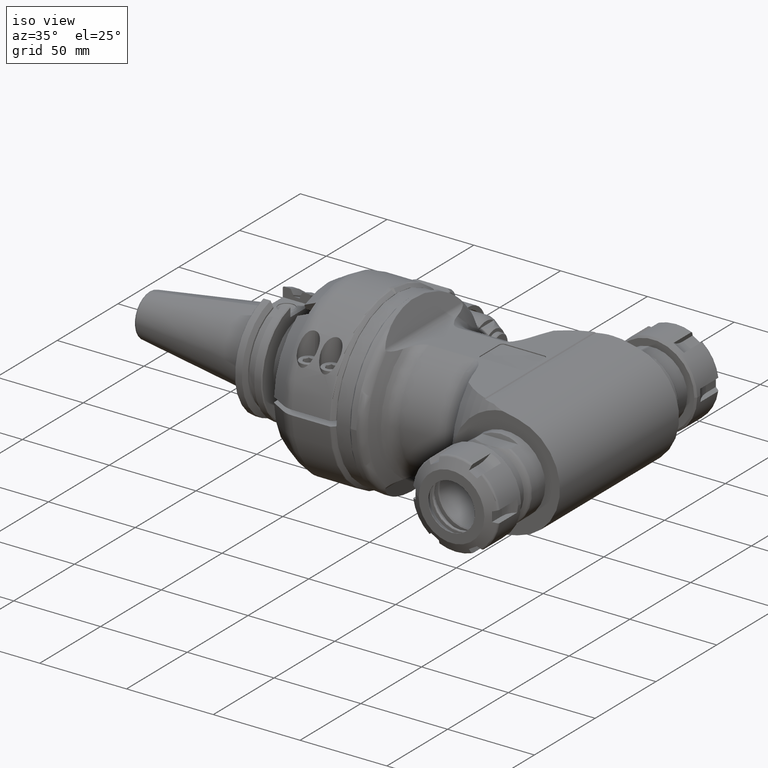
[diagram: clean part render]
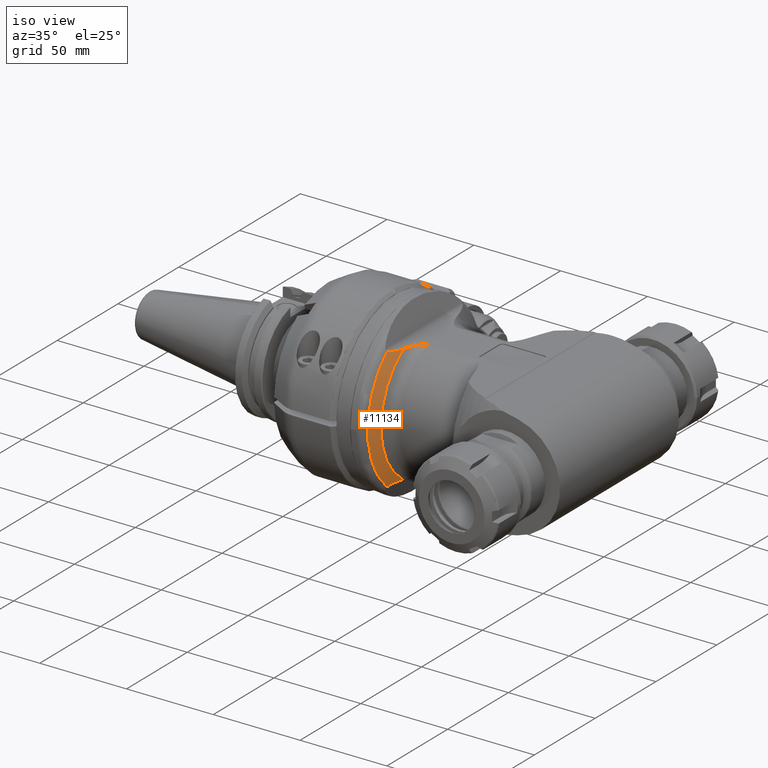
[diagram: same view with one face highlighted and labeled with its STEP entity id]
A machine part, iso view. The second image highlights one B-rep face of the part: STEP entity #11134.
In plain terms, the highlighted conical surface has half-angle 65 deg.
Its self-contained STEP definition (entity closure, byte-faithful):
#130=B_SPLINE_CURVE_WITH_KNOTS('',3,(#20720,#20721,#20722,#20723,#20724,
#20725,#20726,#20727,#20728,#20729),.UNSPECIFIED.,.F.,.F.,(4,2,2,2,4),(-3.05451004274871,
-2.95960896254404,-2.75467675466921,-2.34481233891954,-2.13654855596107),
 .UNSPECIFIED.);
#131=B_SPLINE_CURVE_WITH_KNOTS('',3,(#20732,#20733,#20734,#20735,#20736,
#20737,#20738,#20739,#20740,#20741),.UNSPECIFIED.,.F.,.F.,(4,3,3,4),(0.,
0.3333333333333,0.6666666666667,1.),.UNSPECIFIED.);
#143=B_SPLINE_CURVE_WITH_KNOTS('',3,(#20892,#20893,#20894,#20895,#20896,
#20897,#20898,#20899,#20900,#20901,#20902,#20903),.UNSPECIFIED.,.F.,.F.,
(4,2,2,2,2,4),(5.24845933843418,5.50853326123257,5.8240108553398,5.97685118179449,
6.06018716864049,6.12453302179759),.UNSPECIFIED.);
#144=B_SPLINE_CURVE_WITH_KNOTS('',3,(#20905,#20906,#20907,#20908,#20909,
#20910),.UNSPECIFIED.,.F.,.F.,(4,1,1,4),(0.,0.3333333333333,0.6666666666667,
1.),.UNSPECIFIED.);
#524=CONICAL_SURFACE('',#12164,43.8660726092,1.13446401379631);
#2569=FACE_OUTER_BOUND('',#3283,.T.);
#3283=EDGE_LOOP('',(#8721,#8722,#8723,#8724,#8725,#8726));
#4006=CIRCLE('',#12165,47.1130913087);
#4007=CIRCLE('',#12166,40.61905390607);
#4817=VERTEX_POINT('',#20685);
#4820=VERTEX_POINT('',#20700);
#4821=VERTEX_POINT('',#20731);
#4847=VERTEX_POINT('',#20889);
#4848=VERTEX_POINT('',#20891);
#4849=VERTEX_POINT('',#20904);
#6212=EDGE_CURVE('',#4820,#4817,#130,.T.);
#6213=EDGE_CURVE('',#4821,#4817,#131,.T.);
#6240=EDGE_CURVE('',#4847,#4820,#4006,.T.);
#6241=EDGE_CURVE('',#4848,#4847,#143,.T.);
#6242=EDGE_CURVE('',#4848,#4849,#144,.T.);
#6243=EDGE_CURVE('',#4849,#4821,#4007,.T.);
#8721=ORIENTED_EDGE('',*,*,#6213,.T.);
#8722=ORIENTED_EDGE('',*,*,#6212,.F.);
#8723=ORIENTED_EDGE('',*,*,#6240,.F.);
#8724=ORIENTED_EDGE('',*,*,#6241,.F.);
#8725=ORIENTED_EDGE('',*,*,#6242,.T.);
#8726=ORIENTED_EDGE('',*,*,#6243,.T.);
#11134=ADVANCED_FACE('',(#2569),#524,.T.);
#12164=AXIS2_PLACEMENT_3D('',#20888,#14519,#14520);
#12165=AXIS2_PLACEMENT_3D('',#20890,#14521,#14522);
#12166=AXIS2_PLACEMENT_3D('',#20911,#14523,#14524);
#14519=DIRECTION('center_axis',(-1.,0.,0.));
#14520=DIRECTION('ref_axis',(0.,-1.,0.));
#14521=DIRECTION('center_axis',(-1.,0.,0.));
#14522=DIRECTION('ref_axis',(0.,-0.662186255187699,-0.749339284597099));
#14523=DIRECTION('center_axis',(-1.,0.,0.));
#14524=DIRECTION('ref_axis',(0.,-0.547133144557175,-0.837045591426762));
#20685=CARTESIAN_POINT('',(199.8639272009,-22.51112301213,34.));
#20700=CARTESIAN_POINT('',(196.909284571736,-31.197641512228,35.303690126856));
#20720=CARTESIAN_POINT('Ctrl Pts',(196.909284571827,-31.1976415125225,35.3036901264017));
#20721=CARTESIAN_POINT('Ctrl Pts',(197.029971406864,-30.9564498932227,35.1714403167415));
#20722=CARTESIAN_POINT('Ctrl Pts',(197.147682976989,-30.7013193812616,35.0596517103366));
#20723=CARTESIAN_POINT('Ctrl Pts',(197.516375656589,-29.8592577831953,34.7444200075427));
#20724=CARTESIAN_POINT('Ctrl Pts',(197.761821014429,-29.2352053395637,34.5860807400254));
#20725=CARTESIAN_POINT('Ctrl Pts',(198.482625639979,-27.2708987030917,34.207008321955));
#20726=CARTESIAN_POINT('Ctrl Pts',(198.93093667759,-25.8602514457277,34.0916621431561));
#20727=CARTESIAN_POINT('Ctrl Pts',(199.500786078761,-23.8818038341088,34.0118029779591));
#20728=CARTESIAN_POINT('Ctrl Pts',(199.686067728821,-23.2020320189537,33.9999999999982));
#20729=CARTESIAN_POINT('Ctrl Pts',(199.86392720094,-22.5111230121403,34.));
#20731=CARTESIAN_POINT('',(199.937503946541,-22.2240306639265,34.0000000050698));
#20732=CARTESIAN_POINT('Ctrl Pts',(199.9375039441,-22.22403065858,34.));
#20733=CARTESIAN_POINT('Ctrl Pts',(199.9293780697,-22.25588029903,34.));
#20734=CARTESIAN_POINT('Ctrl Pts',(199.92123575365,-22.287746436985,34.));
#20735=CARTESIAN_POINT('Ctrl Pts',(199.913077029658,-22.3196289372808,34.));
#20736=CARTESIAN_POINT('Ctrl Pts',(199.904918305667,-22.3515114375767,34.));
#20737=CARTESIAN_POINT('Ctrl Pts',(199.896743173733,-22.3834103002133,34.));
#20738=CARTESIAN_POINT('Ctrl Pts',(199.888551543717,-22.4153259334967,34.));
#20739=CARTESIAN_POINT('Ctrl Pts',(199.8803599137,-22.44724156678,34.));
#20740=CARTESIAN_POINT('Ctrl Pts',(199.8721517856,-22.47917397071,34.));
#20741=CARTESIAN_POINT('Ctrl Pts',(199.8639272009,-22.51112301213,34.));
#20888=CARTESIAN_POINT('Origin',(198.4233942567,0.,0.));
#20889=CARTESIAN_POINT('',(196.909284571738,-31.1976415122002,-35.3036901268633));
#20890=CARTESIAN_POINT('Origin',(196.9092845709,0.,0.));
#20891=CARTESIAN_POINT('',(199.8639272009,-22.51112301205,-34.));
#20892=CARTESIAN_POINT('Ctrl Pts',(199.863927200959,-22.5111230120653,-34.));
#20893=CARTESIAN_POINT('Ctrl Pts',(199.627045993366,-23.4313065587796,-33.9999999999965));
#20894=CARTESIAN_POINT('Ctrl Pts',(199.36701902324,-24.3646443958393,-34.0229950411433));
#20895=CARTESIAN_POINT('Ctrl Pts',(198.819156370099,-26.2003289654647,-34.1267752193129));
#20896=CARTESIAN_POINT('Ctrl Pts',(198.431048703058,-27.3952659528634,-34.2447406086006));
#20897=CARTESIAN_POINT('Ctrl Pts',(197.907861747898,-28.842708279741,-34.5056881458486));
#20898=CARTESIAN_POINT('Ctrl Pts',(197.69492859667,-29.4018627106901,-34.6312606018673));
#20899=CARTESIAN_POINT('Ctrl Pts',(197.40748551236,-30.1042242459171,-34.8406267936821));
#20900=CARTESIAN_POINT('Ctrl Pts',(197.282818318807,-30.3966997383646,-34.9407984684546));
#20901=CARTESIAN_POINT('Ctrl Pts',(197.093380402933,-30.8172887993243,-35.1127014278836));
#20902=CARTESIAN_POINT('Ctrl Pts',(197.002855844404,-31.0106401155099,-35.2011538142667));
#20903=CARTESIAN_POINT('Ctrl Pts',(196.909284571835,-31.1976415125065,-35.303690126393));
#20904=CARTESIAN_POINT('',(199.9375039441,-22.22403069256,-34.));
#20905=CARTESIAN_POINT('Ctrl Pts',(199.8639272009,-22.51112301205,-34.));
#20906=CARTESIAN_POINT('Ctrl Pts',(199.8721243334,-22.47928061092,-34.));
#20907=CARTESIAN_POINT('Ctrl Pts',(199.8885060981,-22.41555087282,-34.));
#20908=CARTESIAN_POINT('Ctrl Pts',(199.9131889546,-22.31923960979,-34.));
#20909=CARTESIAN_POINT('Ctrl Pts',(199.9294196496,-22.25571735914,-34.));
#20910=CARTESIAN_POINT('Ctrl Pts',(199.9375039441,-22.22403069256,-34.));
#20911=CARTESIAN_POINT('Origin',(199.9375039441,0.,0.));